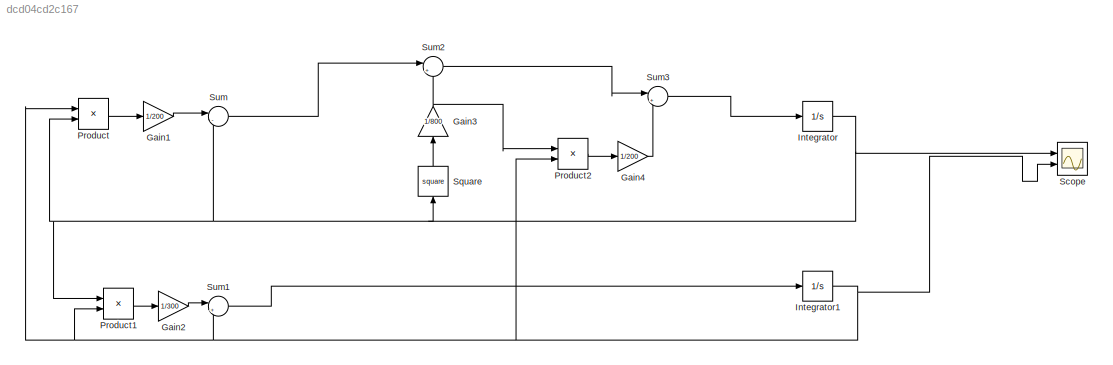
MODEL slx_dcd04cd2c167
KIND model
CONFIG AbsTol = auto
CONFIG EnableMultiTasking = off
CONFIG FixedStep = 0.01
CONFIG MaxStep = auto
CONFIG MinStep = auto
CONFIG RelTol = 1e-3
CONFIG SampleTimeConstraint = Unconstrained
CONFIG SolverName = FixedStepAuto
CONFIG StartTime = 0.0
CONFIG StopTime = 100.0
BLOCK [Gain] Gain1
  Gain = 1/200
BLOCK [Gain] Gain2
  Gain = 1/300
BLOCK [Gain] Gain3
  Gain = 1/800
  NameLocation = right
BLOCK [Gain] Gain4
  Gain = 1/200
BLOCK [Integrator] Integrator
  InitialCondition = 400
  Ports = [1, 1]
BLOCK [Integrator] Integrator1
  InitialCondition = 100
  Ports = [1, 1]
BLOCK [Product] Product
  Ports = [2, 1]
BLOCK [Product] Product1
  Ports = [2, 1]
BLOCK [Product] Product2
  Ports = [2, 1]
BLOCK [Scope] Scope
  Floating = off
  NumInputPorts = 2
  Ports = [2]
  ScopeSpecificationString = Simulink.scopes.TimeScopeBlockCfg('CurrentConfiguration', extmgr.ConfigurationSet(extmgr.Configuration('Core','General UI',true),extmgr.Configuration('Core','Source UI',true),extmgr.Configuration('Sources','WiredSimulink',true),extmgr.Configuration('Visuals','Time Domain',true),extmgr.Configuration('Tools','Plot Navigation',true),extmgr.Configuration('Tools','Measurements',true)),'Version','2020b'...<+1ch>
BLOCK [Math] Square
  NameLocation = right
  Operator = square
  Ports = [1, 1]
BLOCK [Sum] Sum
  Inputs = |-+
  Ports = [2, 1]
BLOCK [Sum] Sum1
  Inputs = |+-
  Ports = [2, 1]
BLOCK [Sum] Sum2
  Inputs = |+-
  Ports = [2, 1]
BLOCK [Sum] Sum3
  Inputs = |++
  Ports = [2, 1]
LINE Gain1:1 -> Sum:1
LINE Gain2:1 -> Sum1:1
NET Gain3:1 -> Product2:1, Sum2:2
LINE Gain4:1 -> Sum3:2
NET Integrator1:1 -> Product1:2, Product2:2, Product:1, Scope:2, Sum1:2
NET Integrator:1 -> Product1:1, Product:2, Scope:1, Square:1, Sum:2
LINE Product1:1 -> Gain2:1
LINE Product2:1 -> Gain4:1
LINE Product:1 -> Gain1:1
LINE Square:1 -> Gain3:1
LINE Sum1:1 -> Integrator1:1
LINE Sum2:1 -> Sum3:1
LINE Sum3:1 -> Integrator:1
LINE Sum:1 -> Sum2:1
note: NET lines group one-source signal fan-out (src -> all destinations, sorted); 1:1 wires keep LINE
